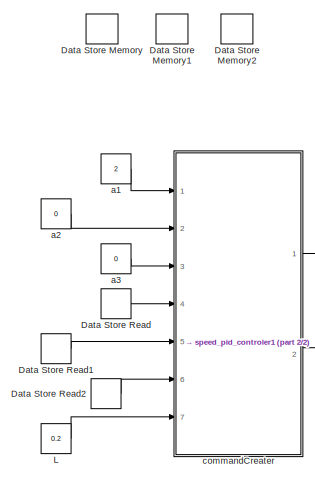
[diagram: root canvas - part 1/2, top left region]
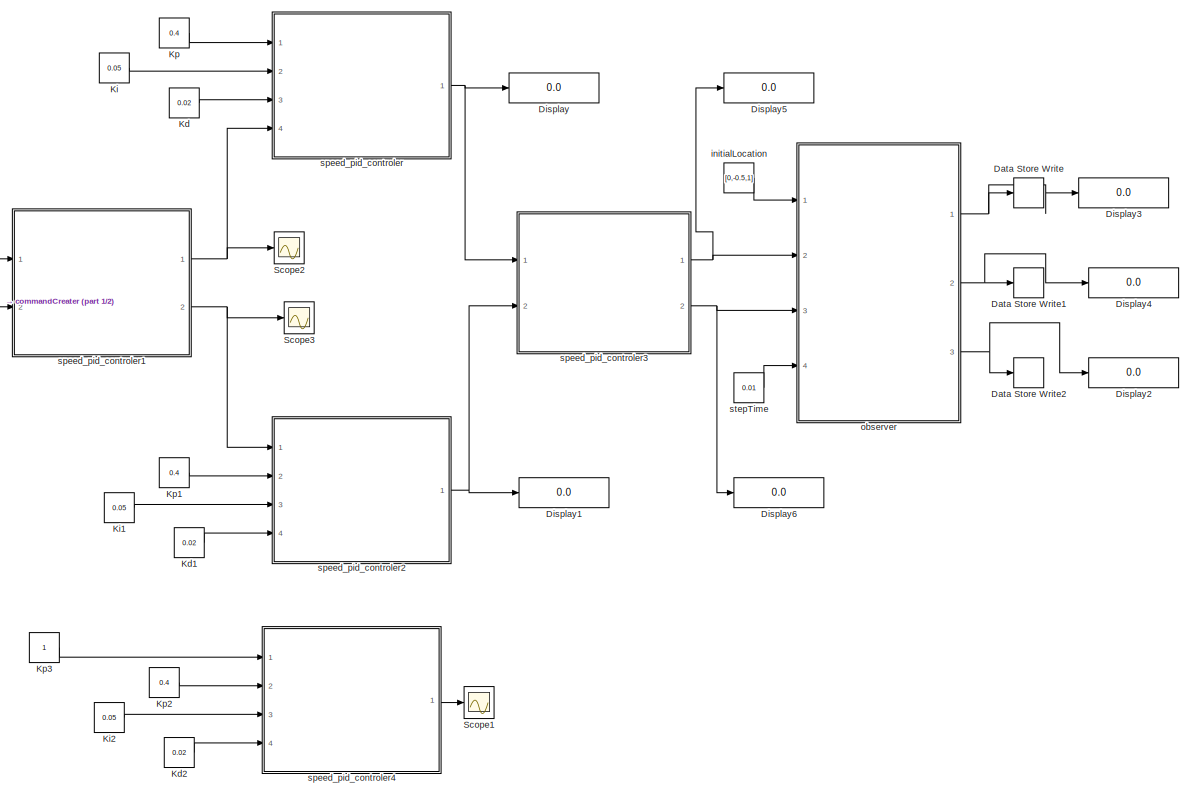
[diagram: root canvas - part 2/2, most of the canvas]
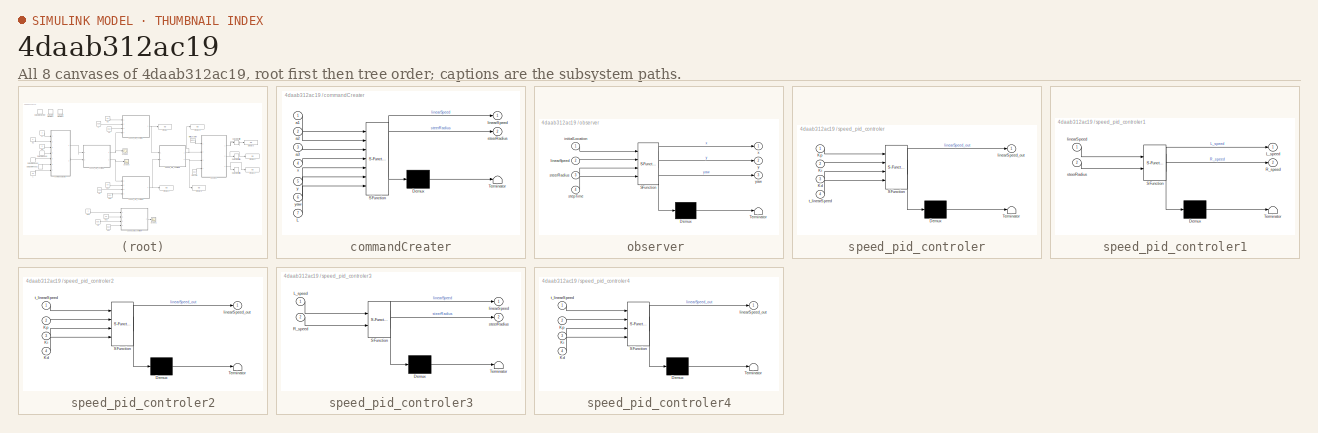
[diagram: thumbnail index - all 8 canvases of the model, root first then tree order]
MODEL slx_4daab312ac19
KIND model
CONFIG AbsTol = auto
CONFIG FixedStep = 0.01
CONFIG MaxStep = auto
CONFIG MinStep = auto
CONFIG RelTol = 1e-3
CONFIG SampleTimeConstraint = Unconstrained
CONFIG Solver = FixedStepDiscrete
CONFIG SolverMode = Auto
CONFIG SolverName = FixedStepDiscrete
CONFIG StartTime = 0.0
CONFIG StopTime = 10
BLOCK [DataStoreMemory] Data Store Memory
  DataStoreName = x
  ReadBeforeWriteMsg = warning
  WriteAfterReadMsg = warning
  WriteAfterWriteMsg = warning
BLOCK [DataStoreMemory] Data Store Memory1
  DataStoreName = y
  ReadBeforeWriteMsg = warning
  WriteAfterReadMsg = warning
  WriteAfterWriteMsg = warning
BLOCK [DataStoreMemory] Data Store Memory2
  DataStoreName = yaw
  ReadBeforeWriteMsg = warning
  WriteAfterReadMsg = warning
  WriteAfterWriteMsg = warning
BLOCK [DataStoreRead] Data Store Read
  DataStoreName = x
  Ports = [0, 1]
BLOCK [DataStoreRead] Data Store Read1
  DataStoreName = y
  Ports = [0, 1]
BLOCK [DataStoreRead] Data Store Read2
  DataStoreName = yaw
  Ports = [0, 1]
BLOCK [DataStoreWrite] Data Store Write
  DataStoreName = x
  Ports = [1]
BLOCK [DataStoreWrite] Data Store Write1
  DataStoreName = y
  Ports = [1]
BLOCK [DataStoreWrite] Data Store Write2
  DataStoreName = yaw
  Ports = [1]
BLOCK [Display] Display
  Decimation = 1
  Ports = [1]
BLOCK [Display] Display1
  Decimation = 1
  Ports = [1]
BLOCK [Display] Display2
  Decimation = 1
  Ports = [1]
BLOCK [Display] Display3
  Decimation = 1
  Ports = [1]
BLOCK [Display] Display4
  Decimation = 1
  Ports = [1]
BLOCK [Display] Display5
  Decimation = 1
  Ports = [1]
BLOCK [Display] Display6
  Decimation = 1
  Ports = [1]
BLOCK [Constant] Kd
  Value = 0.02
BLOCK [Constant] Kd1
  Value = 0.02
BLOCK [Constant] Kd2
  Value = 0.02
BLOCK [Constant] Ki
  Value = 0.05
BLOCK [Constant] Ki1
  Value = 0.05
BLOCK [Constant] Ki2
  Value = 0.05
BLOCK [Constant] Kp
  Value = 0.4
BLOCK [Constant] Kp1
  Value = 0.4
BLOCK [Constant] Kp2
  Value = 0.4
BLOCK [Constant] Kp3
BLOCK [Constant] L
  Value = 0.2
BLOCK [Scope] Scope1
  Ports = [1]
  ScopeSpecificationString = Simulink.scopes.TimeScopeBlockCfg('CurrentConfiguration', extmgr.ConfigurationSet(extmgr.Configuration('Core','General UI',true),extmgr.Configuration('Core','Source UI',true),extmgr.Configuration('Sources','WiredSimulink',true),extmgr.Configuration('Visuals','Time Domain',true,'SerializedDisplays',{struct('MinYLimReal','0.18899','MaxYLimReal','1.09011','YLabelReal','','MinYLimMag','0.18899','MaxYL...<+1409ch>
BLOCK [Scope] Scope2
  Ports = [1]
  ScopeSpecificationString = Simulink.scopes.TimeScopeBlockCfg('CurrentConfiguration', extmgr.ConfigurationSet(extmgr.Configuration('Core','General UI',true),extmgr.Configuration('Core','Source UI',true),extmgr.Configuration('Sources','WiredSimulink',true,'DataLoggingVariableName','ScopeData2'),extmgr.Configuration('Visuals','Time Domain',true,'SerializedDisplays',{struct('MinYLimReal','-1.00000','MaxYLimReal','1.00000','YLab...<+1458ch>
BLOCK [Scope] Scope3
  Ports = [1]
  ScopeSpecificationString = Simulink.scopes.TimeScopeBlockCfg('CurrentConfiguration', extmgr.ConfigurationSet(extmgr.Configuration('Core','General UI',true),extmgr.Configuration('Core','Source UI',true),extmgr.Configuration('Sources','WiredSimulink',true,'DataLoggingVariableName','ScopeData3'),extmgr.Configuration('Visuals','Time Domain',true,'SerializedDisplays',{struct('MinYLimReal','0.8875','MaxYLimReal','11.0125','YLabel...<+1443ch>
BLOCK [Constant] a1
  Value = 2
BLOCK [Constant] a2
  Value = 0
BLOCK [Constant] a3
  Value = 0
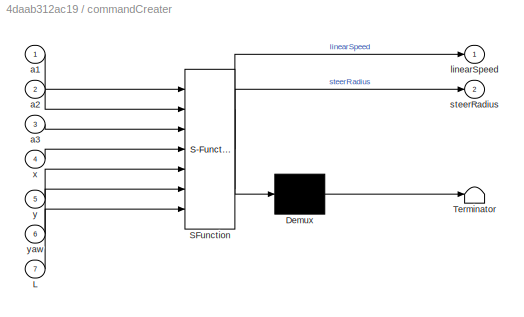
BLOCK [SubSystem] commandCreater
  ErrorFcn = Stateflow.Translate.translate
  PermitHierarchicalResolution = ExplicitOnly
  Ports = [7, 2]
  RequestExecContextInheritance = off
  SFBlockType = MATLAB Function
  TreatAsAtomicUnit = on
  Variant = off
BLOCK [Demux] commandCreater/ Demux 
  Outputs = 1
  Ports = [1, 1]
BLOCK [S-Function] commandCreater/ SFunction 
  EnableBusSupport = on
  FunctionName = sf_sfun
  PortCounts = [7 3]
  Ports = [7, 3]
  SFunctionDeploymentMode = off
  Tag = Stateflow S-Function pure_pursuit_2 3
BLOCK [Terminator] commandCreater/ Terminator 
BLOCK [Inport] commandCreater/L
  IconDisplay = Port number
  Port = 7
BLOCK [Inport] commandCreater/a1
  IconDisplay = Port number
BLOCK [Inport] commandCreater/a2
  IconDisplay = Port number
  Port = 2
BLOCK [Inport] commandCreater/a3
  IconDisplay = Port number
  Port = 3
BLOCK [Outport] commandCreater/linearSpeed
  IconDisplay = Port number
BLOCK [Outport] commandCreater/steerRadius
  IconDisplay = Port number
  Port = 2
BLOCK [Inport] commandCreater/x
  IconDisplay = Port number
  Port = 4
BLOCK [Inport] commandCreater/y
  IconDisplay = Port number
  Port = 5
BLOCK [Inport] commandCreater/yaw
  IconDisplay = Port number
  Port = 6
BLOCK [Constant] initialLocation
  Value = [0,-0.5,1]
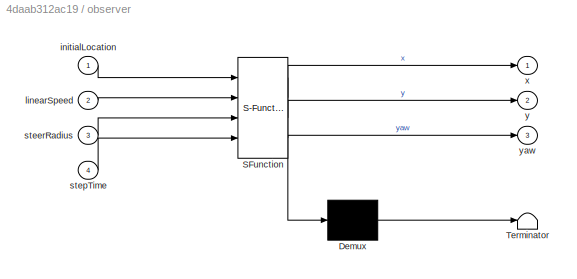
BLOCK [SubSystem] observer 
  ErrorFcn = Stateflow.Translate.translate
  PermitHierarchicalResolution = ExplicitOnly
  Ports = [4, 3]
  RequestExecContextInheritance = off
  SFBlockType = MATLAB Function
  TreatAsAtomicUnit = on
  Variant = off
BLOCK [Demux] observer / Demux 
  Outputs = 1
  Ports = [1, 1]
BLOCK [S-Function] observer / SFunction 
  EnableBusSupport = on
  FunctionName = sf_sfun
  PortCounts = [4 4]
  Ports = [4, 4]
  SFunctionDeploymentMode = off
  Tag = Stateflow S-Function pure_pursuit_2 1
BLOCK [Terminator] observer / Terminator 
BLOCK [Inport] observer /initialLocation
  IconDisplay = Port number
BLOCK [Inport] observer /linearSpeed
  IconDisplay = Port number
  Port = 2
BLOCK [Inport] observer /steerRadius
  IconDisplay = Port number
  Port = 3
BLOCK [Inport] observer /stepTime
  IconDisplay = Port number
  Port = 4
BLOCK [Outport] observer /x
  IconDisplay = Port number
BLOCK [Outport] observer /y
  IconDisplay = Port number
  Port = 2
BLOCK [Outport] observer /yaw
  IconDisplay = Port number
  Port = 3
BLOCK [SubSystem] speed_pid_controler
  ErrorFcn = Stateflow.Translate.translate
  PermitHierarchicalResolution = ExplicitOnly
  Ports = [4, 1]
  RequestExecContextInheritance = off
  SFBlockType = MATLAB Function
  TreatAsAtomicUnit = on
  Variant = off
BLOCK [Demux] speed_pid_controler/ Demux 
  Outputs = 1
  Ports = [1, 1]
BLOCK [S-Function] speed_pid_controler/ SFunction 
  EnableBusSupport = on
  FunctionName = sf_sfun
  PortCounts = [4 2]
  Ports = [4, 2]
  SFunctionDeploymentMode = off
  Tag = Stateflow S-Function pure_pursuit_2 2
BLOCK [Terminator] speed_pid_controler/ Terminator 
BLOCK [Inport] speed_pid_controler/Kd
  IconDisplay = Port number
  Port = 3
BLOCK [Inport] speed_pid_controler/Ki
  IconDisplay = Port number
  Port = 2
BLOCK [Inport] speed_pid_controler/Kp
  IconDisplay = Port number
BLOCK [Outport] speed_pid_controler/linearSpeed_out
  IconDisplay = Port number
BLOCK [Inport] speed_pid_controler/t_linearSpeed
  IconDisplay = Port number
  Port = 4
BLOCK [SubSystem] speed_pid_controler1
  ErrorFcn = Stateflow.Translate.translate
  PermitHierarchicalResolution = ExplicitOnly
  Ports = [2, 2]
  RequestExecContextInheritance = off
  SFBlockType = MATLAB Function
  TreatAsAtomicUnit = on
  Variant = off
BLOCK [Demux] speed_pid_controler1/ Demux 
  Outputs = 1
  Ports = [1, 1]
BLOCK [S-Function] speed_pid_controler1/ SFunction 
  EnableBusSupport = on
  FunctionName = sf_sfun
  PortCounts = [2 3]
  Ports = [2, 3]
  SFunctionDeploymentMode = off
  Tag = Stateflow S-Function pure_pursuit_2 4
BLOCK [Terminator] speed_pid_controler1/ Terminator 
BLOCK [Outport] speed_pid_controler1/L_speed
  IconDisplay = Port number
BLOCK [Outport] speed_pid_controler1/R_speed
  IconDisplay = Port number
  Port = 2
BLOCK [Inport] speed_pid_controler1/linearSpeed
  IconDisplay = Port number
BLOCK [Inport] speed_pid_controler1/steerRadius
  IconDisplay = Port number
  Port = 2
BLOCK [SubSystem] speed_pid_controler2
  ErrorFcn = Stateflow.Translate.translate
  PermitHierarchicalResolution = ExplicitOnly
  Ports = [4, 1]
  RequestExecContextInheritance = off
  SFBlockType = MATLAB Function
  TreatAsAtomicUnit = on
  Variant = off
BLOCK [Demux] speed_pid_controler2/ Demux 
  Outputs = 1
  Ports = [1, 1]
BLOCK [S-Function] speed_pid_controler2/ SFunction 
  EnableBusSupport = on
  FunctionName = sf_sfun
  PortCounts = [4 2]
  Ports = [4, 2]
  SFunctionDeploymentMode = off
  Tag = Stateflow S-Function pure_pursuit_2 5
BLOCK [Terminator] speed_pid_controler2/ Terminator 
BLOCK [Inport] speed_pid_controler2/Kd
  IconDisplay = Port number
  Port = 4
BLOCK [Inport] speed_pid_controler2/Ki
  IconDisplay = Port number
  Port = 3
BLOCK [Inport] speed_pid_controler2/Kp
  IconDisplay = Port number
  Port = 2
BLOCK [Outport] speed_pid_controler2/linearSpeed_out
  IconDisplay = Port number
BLOCK [Inport] speed_pid_controler2/t_linearSpeed
  IconDisplay = Port number
BLOCK [SubSystem] speed_pid_controler3
  ErrorFcn = Stateflow.Translate.translate
  PermitHierarchicalResolution = ExplicitOnly
  Ports = [2, 2]
  RequestExecContextInheritance = off
  SFBlockType = MATLAB Function
  TreatAsAtomicUnit = on
  Variant = off
BLOCK [Demux] speed_pid_controler3/ Demux 
  Outputs = 1
  Ports = [1, 1]
BLOCK [S-Function] speed_pid_controler3/ SFunction 
  EnableBusSupport = on
  FunctionName = sf_sfun
  PortCounts = [2 3]
  Ports = [2, 3]
  SFunctionDeploymentMode = off
  Tag = Stateflow S-Function pure_pursuit_2 6
BLOCK [Terminator] speed_pid_controler3/ Terminator 
BLOCK [Inport] speed_pid_controler3/L_speed
  IconDisplay = Port number
BLOCK [Inport] speed_pid_controler3/R_speed
  IconDisplay = Port number
  Port = 2
BLOCK [Outport] speed_pid_controler3/linearSpeed
  IconDisplay = Port number
BLOCK [Outport] speed_pid_controler3/steerRadius
  IconDisplay = Port number
  Port = 2
BLOCK [SubSystem] speed_pid_controler4
  ErrorFcn = Stateflow.Translate.translate
  PermitHierarchicalResolution = ExplicitOnly
  Ports = [4, 1]
  RequestExecContextInheritance = off
  SFBlockType = MATLAB Function
  TreatAsAtomicUnit = on
  Variant = off
BLOCK [Demux] speed_pid_controler4/ Demux 
  Outputs = 1
  Ports = [1, 1]
BLOCK [S-Function] speed_pid_controler4/ SFunction 
  EnableBusSupport = on
  FunctionName = sf_sfun
  PortCounts = [4 2]
  Ports = [4, 2]
  SFunctionDeploymentMode = off
  Tag = Stateflow S-Function pure_pursuit_2 7
BLOCK [Terminator] speed_pid_controler4/ Terminator 
BLOCK [Inport] speed_pid_controler4/Kd
  IconDisplay = Port number
  Port = 4
BLOCK [Inport] speed_pid_controler4/Ki
  IconDisplay = Port number
  Port = 3
BLOCK [Inport] speed_pid_controler4/Kp
  IconDisplay = Port number
  Port = 2
BLOCK [Outport] speed_pid_controler4/linearSpeed_out
  IconDisplay = Port number
BLOCK [Inport] speed_pid_controler4/t_linearSpeed
  IconDisplay = Port number
BLOCK [Constant] stepTime
  Value = 0.01
LINE Data Store Read1:1 -> commandCreater:5
LINE Data Store Read2:1 -> commandCreater:6
LINE Data Store Read:1 -> commandCreater:4
LINE Kd1:1 -> speed_pid_controler2:4
LINE Kd2:1 -> speed_pid_controler4:4
LINE Kd:1 -> speed_pid_controler:3
LINE Ki1:1 -> speed_pid_controler2:3
LINE Ki2:1 -> speed_pid_controler4:3
LINE Ki:1 -> speed_pid_controler:2
LINE Kp1:1 -> speed_pid_controler2:2
LINE Kp2:1 -> speed_pid_controler4:2
LINE Kp3:1 -> speed_pid_controler4:1
LINE Kp:1 -> speed_pid_controler:1
LINE L:1 -> commandCreater:7
LINE a1:1 -> commandCreater:1
LINE a2:1 -> commandCreater:2
LINE a3:1 -> commandCreater:3
LINE commandCreater:1 -> speed_pid_controler1:1
LINE commandCreater:2 -> speed_pid_controler1:2
LINE initialLocation:1 -> observer :1
NET observer :1 -> Data Store Write:1, Display3:1
NET observer :2 -> Data Store Write1:1, Display4:1
NET observer :3 -> Data Store Write2:1, Display2:1
NET speed_pid_controler1:1 -> Scope2:1, speed_pid_controler:4
NET speed_pid_controler1:2 -> Scope3:1, speed_pid_controler2:1
NET speed_pid_controler2:1 -> Display1:1, speed_pid_controler3:2
NET speed_pid_controler3:1 -> Display5:1, observer :2
NET speed_pid_controler3:2 -> Display6:1, observer :3
LINE speed_pid_controler4:1 -> Scope1:1
NET speed_pid_controler:1 -> Display:1, speed_pid_controler3:1
LINE stepTime:1 -> observer :4
note: NET lines group one-source signal fan-out (src -> all destinations, sorted); 1:1 wires keep LINE
CHART observer
 states=1 transitions=1
  STATE_LABEL 'eML_blk_kernel()'
  STATE_LABEL "SCRIPT:\nfunction [x,y,yaw] = fcn(initialLocation,linearSpeed,steerRadius,stepTime)\n%#左转时转弯半径为负数\npersistent x0;\npersistent y0;\npersistent theta0;\npersistent first_time_flag;\n\nif(isempty(x0))\n    x0 = 0;\n    y0 = 0;\n    theta0 = 0.0;\n    first_time_flag = 1;\nend\n\nfp = fopen('record.txt','a');\nif(first_time_flag == 1)\n    x=initialLocation(1);\n    y=initialLocation(2);\n    yaw = initialLocation(3);\n ...<+588ch>"
CHART speed_pid_controler states=1 transitions=1
  STATE_LABEL 'eML_blk_kernel()'
  STATE_LABEL 'SCRIPT:\nfunction linearSpeed_out = fcn(Kp,Ki,Kd,t_linearSpeed)\npersistent last_err\npersistent last_last_err\npersistent sigma_err\npersistent last_val %上一次的值\n\nif(isempty(last_err))\n    last_err = 0;\n    sigma_err = 0;\n    last_val =0;\n    last_last_err=0;\nend \n\nerr = t_linearSpeed - last_val;\nsigma_err = sigma_err + err;\nlinearSpeed_out = Kp *err +Ki*sigma_err +Kd* (err-last_err);\n%linearSpeed_out =...<+193ch>'
CHART commandCreater states=1 transitions=1
  STATE_LABEL 'eML_blk_kernel()'
  STATE_LABEL 'SCRIPT:\nfunction [linearSpeed,steerRadius] = fcn(a1,a2,a3,x,y,yaw,L)\npersistent target_x;\npersistent target_y;\npersistent last_linear_speed;\nif(isempty(target_x))\n    target_x = 0;\n    last_linear_speed = 0;\nend\n% if(isempty(target_y))\n%     target_y = 0;\n% end\n%左转时转弯半径为负数\n\ntarget_y = a1*target_x + a2*target_x^2 + a3*target_x^3;\n%target_y = sin(target_x);\ndis = (target_y-y)^2+(target_x-x)^2;\nt_yaw...<+532ch>'
CHART speed_pid_controler1 states=1 transitions=1
  STATE_LABEL 'eML_blk_kernel()'
  STATE_LABEL 'SCRIPT:\nfunction [L_speed,R_speed] = fcn(linearSpeed,steerRadius)\n    WHEEL_BASE = 0.5; %轮距0.5m\n    angularSpeed = linearSpeed/steerRadius;\n    L_speed = linearSpeed + (angularSpeed * WHEEL_BASE)/2;\n    R_speed = linearSpeed - (angularSpeed * WHEEL_BASE)/2;'
CHART speed_pid_controler2 states=1 transitions=1
  STATE_LABEL 'eML_blk_kernel()'
  STATE_LABEL 'SCRIPT:\nfunction linearSpeed_out = fcn(t_linearSpeed,Kp,Ki,Kd)\npersistent last_err\npersistent last_last_err\npersistent sigma_err\npersistent last_val %上一次的值\n\nif(isempty(last_err))\n    last_err = 0;\n    sigma_err = 0;\n    last_val =0;\n    last_last_err=0;\nend \n\nerr = t_linearSpeed - last_val;\nsigma_err = sigma_err + err;\nlinearSpeed_out = Kp *err +Ki*sigma_err +Kd* (err-last_err);\n%linearSpeed_out =...<+193ch>'
CHART speed_pid_controler3 states=1 transitions=1
  STATE_LABEL 'eML_blk_kernel()'
  STATE_LABEL 'SCRIPT:\nfunction [linearSpeed,steerRadius] = fcn(L_speed,R_speed)\n    WHEEL_BASE = 0.5; %轮距0.5m\n    if(L_speed == R_speed)\n        steerRadius = Inf;\n    else\n        steerRadius = WHEEL_BASE*(L_speed+R_speed)/(L_speed-R_speed)/2;\n    end\n    linearSpeed = (L_speed+R_speed)/2;\n    '
CHART speed_pid_controler4 states=1 transitions=1
  STATE_LABEL 'eML_blk_kernel()'
  STATE_LABEL 'SCRIPT:\nfunction linearSpeed_out = fcn(t_linearSpeed,Kp,Ki,Kd)\npersistent last_err\npersistent last_last_err\npersistent sigma_err\npersistent last_val %上一次的值\n\nif(isempty(last_err))\n    last_err = 0;\n    sigma_err = 0;\n    last_val =0;\n    last_last_err=0;\nend \n\nerr = t_linearSpeed - last_val;\nsigma_err = sigma_err + err;\nlinearSpeed_out = Kp *err +Ki*sigma_err +Kd* (err-last_err);\n%linearSpeed_out =...<+193ch>'
